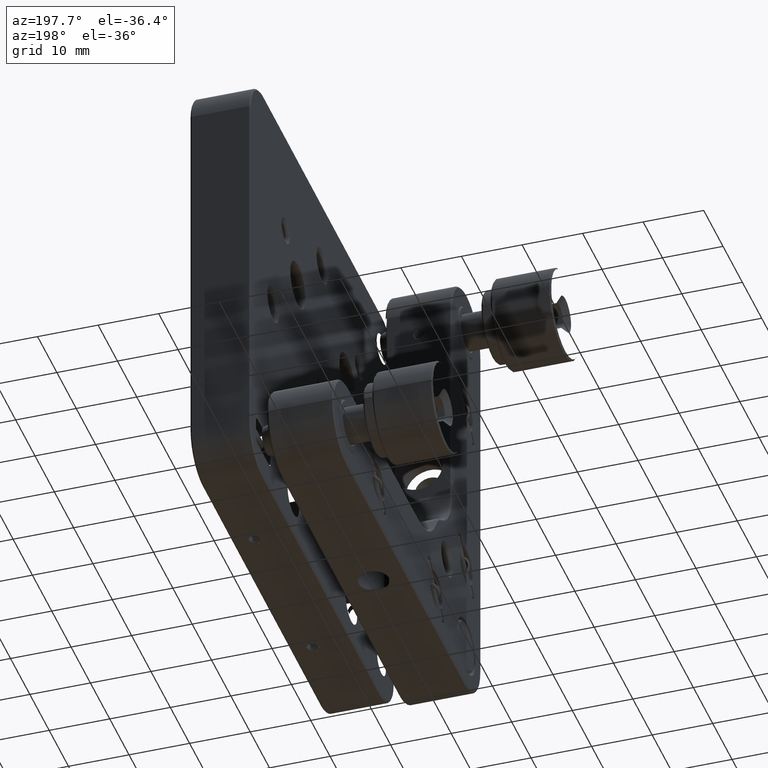
[diagram: clean part render]
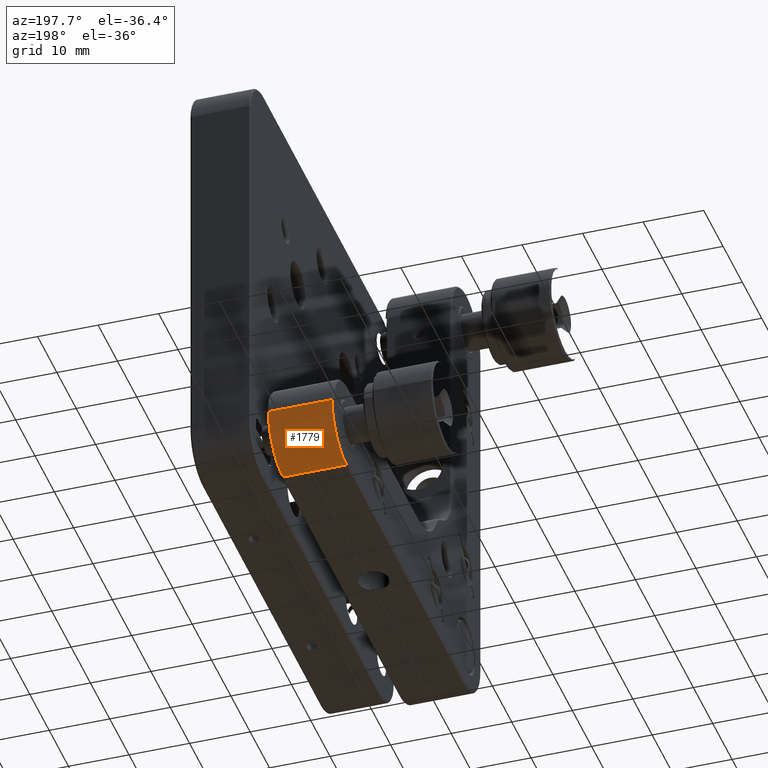
[diagram: same view with one face highlighted and labeled with its STEP entity id]
A machine part, auxiliary view. The second image highlights one B-rep face of the part: STEP entity #1779.
In plain terms, the highlighted face is a freeform B-spline surface patch.
Its self-contained STEP definition (entity closure, byte-faithful):
#1779 = ADVANCED_FACE ( 'NONE', ( #35576 ), #28626, .T. ) ;
#2749 = CARTESIAN_POINT ( 'NONE',  ( 6.301199999999997026, 23.10000000000000142, -38.09999999999999432 ) ) ;
#3447 = CARTESIAN_POINT ( 'NONE',  ( -6.301200000000001467, 23.10000000000000142, -38.09999999999999432 ) ) ;
#3638 = ORIENTED_EDGE ( 'NONE', *, *, #32680, .T. ) ;
#4196 = VERTEX_POINT ( 'NONE', #13991 ) ;
#4771 = DIRECTION ( 'NONE',  ( -1.000000000000000000, -0.000000000000000000, -0.000000000000000000 ) ) ;
#6478 = ORIENTED_EDGE ( 'NONE', *, *, #21891, .F. ) ;
#7272 = CARTESIAN_POINT ( 'NONE',  ( 6.301199999999997914, 23.10000000000000142, -30.59999999999999432 ) ) ;
#7526 = CIRCLE ( 'NONE', #42733, 7.499999999999996447 ) ;
#7870 = VERTEX_POINT ( 'NONE', #18476 ) ;
#8336 = CIRCLE ( 'NONE', #35115, 7.500000000000003553 ) ;
#9940 = CARTESIAN_POINT ( 'NONE',  ( -6.301200000000001467, 38.10000000000000142, -30.59999999999999432 ) ) ;
#10281 = VERTEX_POINT ( 'NONE', #33491 ) ;
#10403 = CARTESIAN_POINT ( 'NONE',  ( 6.301199999999997914, 38.10000000000000142, -30.59999999999999432 ) ) ;
#10862 = CARTESIAN_POINT ( 'NONE',  ( -6.301200000000001467, 23.10000000000000142, -23.09999999999999432 ) ) ;
#12894 = CARTESIAN_POINT ( 'NONE',  ( -6.301200000000005019, 30.60000000000000497, -38.09999999999999432 ) ) ;
#13213 = DIRECTION ( 'NONE',  ( -1.000000000000000000, -0.000000000000000000, -0.000000000000000000 ) ) ;
#13680 = DIRECTION ( 'NONE',  ( 0.000000000000000000, 0.000000000000000000, 1.000000000000000000 ) ) ;
#13991 = CARTESIAN_POINT ( 'NONE',  ( 5.249999999999993783, 38.10000000000000853, -30.59999999999999432 ) ) ;
#14006 = CARTESIAN_POINT ( 'NONE',  ( 6.301199999999997914, 23.10000000000000142, -30.59999999999999432 ) ) ;
#14226 = CARTESIAN_POINT ( 'NONE',  ( -6.301200000000001467, 30.60000000000000142, -23.09999999999999432 ) ) ;
#15312 = LINE ( 'NONE', #36875, #38943 ) ;
#16364 = ORIENTED_EDGE ( 'NONE', *, *, #22280, .F. ) ;
#17822 = CARTESIAN_POINT ( 'NONE',  ( -6.301200000000001467, 23.10000000000000142, -30.59999999999999432 ) ) ;
#18476 = CARTESIAN_POINT ( 'NONE',  ( -5.249999999999997335, 38.10000000000000853, -30.59999999999999432 ) ) ;
#21426 = CARTESIAN_POINT ( 'NONE',  ( -6.301200000000001467, 23.10000000000000142, -30.59999999999999432 ) ) ;
#21659 = CARTESIAN_POINT ( 'NONE',  ( 6.301199999999997026, 38.10000000000000142, -38.09999999999999432 ) ) ;
#21891 = EDGE_CURVE ( 'NONE', #7870, #10281, #7526, .T. ) ;
#21896 = CARTESIAN_POINT ( 'NONE',  ( 6.301199999999997026, 23.10000000000000142, -23.09999999999999432 ) ) ;
#22280 = EDGE_CURVE ( 'NONE', #31968, #4196, #8336, .T. ) ;
#22518 = DIRECTION ( 'NONE',  ( 0.000000000000000000, 4.625929269271482956E-16, 1.000000000000000000 ) ) ;
#24165 = DIRECTION ( 'NONE',  ( -1.000000000000000000, -0.000000000000000000, -0.000000000000000000 ) ) ;
#25896 = CARTESIAN_POINT ( 'NONE',  ( 5.249999999999995559, 30.59999999999999787, -30.59999999999999432 ) ) ;
#26136 = DIRECTION ( 'NONE',  ( 1.000000000000000000, -0.000000000000000000, -0.000000000000000000 ) ) ;
#27122 = CARTESIAN_POINT ( 'NONE',  ( 5.249999999999995559, 30.60000000000000142, -38.09999999999999432 ) ) ;
#28417 = CARTESIAN_POINT ( 'NONE',  ( 6.301199999999997914, 30.60000000000000142, -23.09999999999999432 ) ) ;
#28626 =( BOUNDED_SURFACE ( )  B_SPLINE_SURFACE ( 2, 1, ( 
 ( #14006, #17822 ),
 ( #21896, #10862 ),
 ( #28417, #14226 ),
 ( #40085, #28881 ),
 ( #10403, #9940 ),
 ( #21659, #36044 ),
 ( #36269, #39156 ),
 ( #2749, #3447 ),
 ( #7272, #21426 ) ),
 .UNSPECIFIED., .F., .F., .F. ) 
 B_SPLINE_SURFACE_WITH_KNOTS ( ( 3, 2, 2, 2, 3 ),
 ( 2, 2 ),
 ( 0.000000000000000000, 1.570796326794896558, 3.141592653589793116, 4.712388980384689674, 6.283185307179586232 ),
 ( 0.000000000000000000, 12.60239999999999938 ),
 .UNSPECIFIED. ) 
 GEOMETRIC_REPRESENTATION_ITEM ( )  RATIONAL_B_SPLINE_SURFACE ( (
 ( 1.000000000000000000, 1.000000000000000000),
 ( 0.7071067811865475727, 0.7071067811865475727),
 ( 1.000000000000000000, 1.000000000000000000),
 ( 0.7071067811865475727, 0.7071067811865475727),
 ( 1.000000000000000000, 1.000000000000000000),
 ( 0.7071067811865475727, 0.7071067811865475727),
 ( 1.000000000000000000, 1.000000000000000000),
 ( 0.7071067811865475727, 0.7071067811865475727),
 ( 1.000000000000000000, 1.000000000000000000) ) ) 
 REPRESENTATION_ITEM ( '' )  SURFACE ( )  );
#28881 = CARTESIAN_POINT ( 'NONE',  ( -6.301200000000001467, 38.10000000000000142, -23.09999999999999432 ) ) ;
#31968 = VERTEX_POINT ( 'NONE', #27122 ) ;
#32680 = EDGE_CURVE ( 'NONE', #31968, #10281, #41637, .T. ) ;
#33491 = CARTESIAN_POINT ( 'NONE',  ( -5.249999999999998224, 30.60000000000001918, -38.09999999999999432 ) ) ;
#34093 = EDGE_CURVE ( 'NONE', #4196, #7870, #15312, .T. ) ;
#35115 = AXIS2_PLACEMENT_3D ( 'NONE', #25896, #26136, #22518 ) ;
#35576 = FACE_OUTER_BOUND ( 'NONE', #36704, .T. ) ;
#36044 = CARTESIAN_POINT ( 'NONE',  ( -6.301200000000001467, 38.10000000000000142, -38.09999999999999432 ) ) ;
#36269 = CARTESIAN_POINT ( 'NONE',  ( 6.301199999999997914, 30.60000000000000142, -38.09999999999999432 ) ) ;
#36704 = EDGE_LOOP ( 'NONE', ( #39806, #16364, #3638, #6478 ) ) ;
#36875 = CARTESIAN_POINT ( 'NONE',  ( -1.734723475976807094E-15, 38.10000000000000142, -30.59999999999999432 ) ) ;
#38943 = VECTOR ( 'NONE', #4771, 1000.000000000000000 ) ;
#39156 = CARTESIAN_POINT ( 'NONE',  ( -6.301200000000001467, 30.60000000000000142, -38.09999999999999432 ) ) ;
#39806 = ORIENTED_EDGE ( 'NONE', *, *, #34093, .F. ) ;
#40085 = CARTESIAN_POINT ( 'NONE',  ( 6.301199999999997026, 38.10000000000000142, -23.09999999999999432 ) ) ;
#41637 = LINE ( 'NONE', #12894, #43539 ) ;
#42733 = AXIS2_PLACEMENT_3D ( 'NONE', #46025, #13213, #13680 ) ;
#43539 = VECTOR ( 'NONE', #24165, 1000.000000000000000 ) ;
#46025 = CARTESIAN_POINT ( 'NONE',  ( -5.249999999999998224, 30.60000000000000142, -30.59999999999999432 ) ) ;